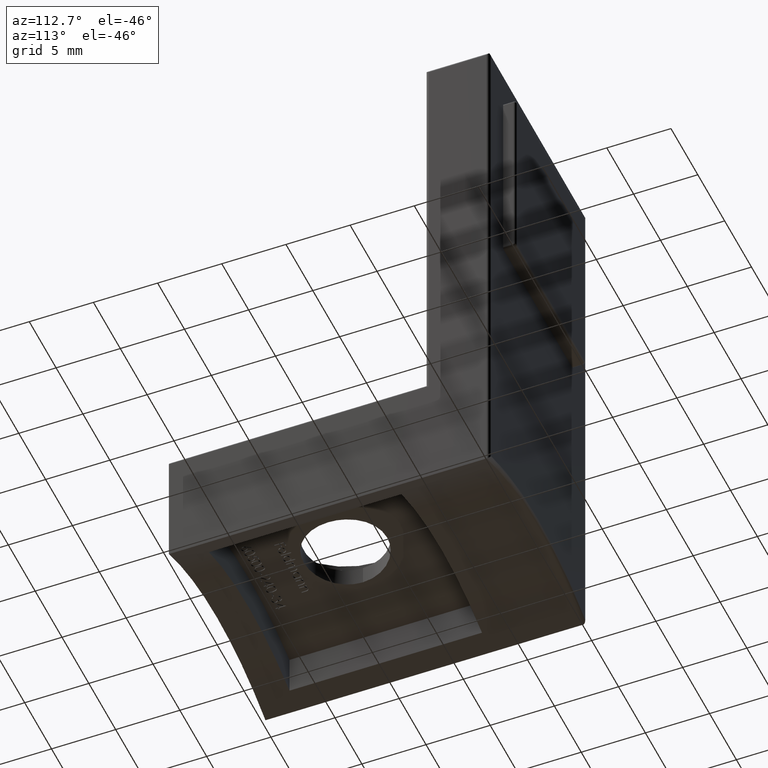
[diagram: clean part render]
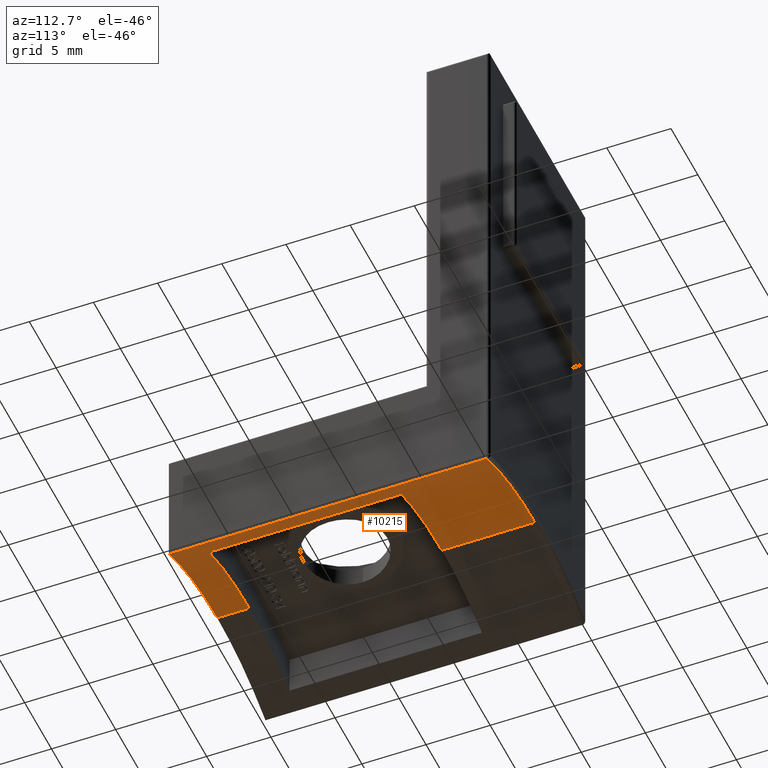
[diagram: same view with one face highlighted and labeled with its STEP entity id]
A machine part, auxiliary view. The second image highlights one B-rep face of the part: STEP entity #10215.
In plain terms, the highlighted cylindrical surface (partial cylindrical patch) has radius 21.2 mm, axis along (-0, 1, -0).
Its self-contained STEP definition (entity closure, byte-faithful):
#129 = CARTESIAN_POINT ( 'NONE',  ( 0.0000000000000000000, -7.499999999999996400, -21.19999999999999900 ) ) ;
#149 = EDGE_CURVE ( 'NONE', #3386, #8612, #14125, .T. ) ;
#370 = DIRECTION ( 'NONE',  ( -0.0000000000000000000, 1.000000000000000000, -0.0000000000000000000 ) ) ;
#374 = EDGE_CURVE ( 'NONE', #681, #10764, #5834, .T. ) ;
#390 = LINE ( 'NONE', #8334, #10802 ) ;
#568 = DIRECTION ( 'NONE',  ( 0.0000000000000000000, 0.0000000000000000000, 1.000000000000000000 ) ) ;
#681 = VERTEX_POINT ( 'NONE', #3149 ) ;
#1197 = EDGE_LOOP ( 'NONE', ( #12771, #9539, #3953, #9008, #12128, #14207, #10861, #2387 ) ) ;
#1207 = EDGE_CURVE ( 'NONE', #681, #12019, #9747, .T. ) ;
#1694 = CARTESIAN_POINT ( 'NONE',  ( 7.500000000000003600, -25.00000000000000000, -1.370980861373903600 ) ) ;
#1699 = DIRECTION ( 'NONE',  ( -0.0000000000000000000, 1.000000000000000000, -0.0000000000000000000 ) ) ;
#1723 = VERTEX_POINT ( 'NONE', #12835 ) ;
#2149 = DIRECTION ( 'NONE',  ( -0.0000000000000000000, 1.000000000000000000, -0.0000000000000000000 ) ) ;
#2387 = ORIENTED_EDGE ( 'NONE', *, *, #11281, .F. ) ;
#2605 = CARTESIAN_POINT ( 'NONE',  ( 9.000000000000000000, -25.00000000000000000, -2.005209039950446700 ) ) ;
#2857 = CARTESIAN_POINT ( 'NONE',  ( 0.0000000000000000000, -0.2500000000000002200, 0.0000000000000000000 ) ) ;
#2981 = EDGE_CURVE ( 'NONE', #1723, #7633, #14585, .T. ) ;
#3087 = EDGE_CURVE ( 'NONE', #10764, #11946, #10906, .T. ) ;
#3149 = CARTESIAN_POINT ( 'NONE',  ( 0.0000000000000000000, -7.499999999999996400, 0.0000000000000000000 ) ) ;
#3386 = VERTEX_POINT ( 'NONE', #6712 ) ;
#3539 = FACE_OUTER_BOUND ( 'NONE', #1197, .T. ) ;
#3595 = AXIS2_PLACEMENT_3D ( 'NONE', #3971, #14296, #11895 ) ;
#3622 = DIRECTION ( 'NONE',  ( -0.0000000000000000000, 1.000000000000000000, -0.0000000000000000000 ) ) ;
#3953 = ORIENTED_EDGE ( 'NONE', *, *, #149, .T. ) ;
#3971 = CARTESIAN_POINT ( 'NONE',  ( 0.0000000000000000000, -25.00000000000000000, -21.19999999999999900 ) ) ;
#4012 = CARTESIAN_POINT ( 'NONE',  ( 7.500000000000003600, -22.50000000000000000, -1.370980861373903600 ) ) ;
#4088 = CARTESIAN_POINT ( 'NONE',  ( 9.000000000000000000, -25.00000000000000000, -2.005209039950446700 ) ) ;
#4516 = CARTESIAN_POINT ( 'NONE',  ( 7.500000000000005300, -7.499999999999996400, -1.370980861373907000 ) ) ;
#4691 = LINE ( 'NONE', #1694, #11265 ) ;
#4918 = DIRECTION ( 'NONE',  ( 0.0000000000000000000, 0.0000000000000000000, -1.000000000000000000 ) ) ;
#5056 = AXIS2_PLACEMENT_3D ( 'NONE', #9408, #370, #4918 ) ;
#5834 = LINE ( 'NONE', #8904, #13275 ) ;
#6613 = AXIS2_PLACEMENT_3D ( 'NONE', #129, #3622, #9152 ) ;
#6712 = CARTESIAN_POINT ( 'NONE',  ( 0.0000000000000000000, -22.50000000000000000, 0.0000000000000000000 ) ) ;
#7282 = CYLINDRICAL_SURFACE ( 'NONE', #7431, 21.19999999999999900 ) ;
#7431 = AXIS2_PLACEMENT_3D ( 'NONE', #10358, #14148, #568 ) ;
#7633 = VERTEX_POINT ( 'NONE', #2605 ) ;
#8334 = CARTESIAN_POINT ( 'NONE',  ( 0.0000000000000000000, -25.00000000000000000, 0.0000000000000000000 ) ) ;
#8411 = AXIS2_PLACEMENT_3D ( 'NONE', #12401, #9083, #13474 ) ;
#8612 = VERTEX_POINT ( 'NONE', #4012 ) ;
#8904 = CARTESIAN_POINT ( 'NONE',  ( 0.0000000000000000000, -25.00000000000000000, 0.0000000000000000000 ) ) ;
#9008 = ORIENTED_EDGE ( 'NONE', *, *, #9207, .T. ) ;
#9083 = DIRECTION ( 'NONE',  ( -0.0000000000000000000, 1.000000000000000000, -0.0000000000000000000 ) ) ;
#9152 = DIRECTION ( 'NONE',  ( 0.0000000000000000000, 0.0000000000000000000, -1.000000000000000000 ) ) ;
#9207 = EDGE_CURVE ( 'NONE', #8612, #12019, #4691, .T. ) ;
#9408 = CARTESIAN_POINT ( 'NONE',  ( 0.0000000000000000000, -22.50000000000000000, -21.19999999999999900 ) ) ;
#9539 = ORIENTED_EDGE ( 'NONE', *, *, #10765, .T. ) ;
#9747 = CIRCLE ( 'NONE', #6613, 21.19999999999999900 ) ;
#9940 = VECTOR ( 'NONE', #1699, 1000.000000000000000 ) ;
#10215 = ADVANCED_FACE ( 'NONE', ( #3539 ), #7282, .F. ) ;
#10358 = CARTESIAN_POINT ( 'NONE',  ( 0.0000000000000000000, -25.00000000000000000, -21.19999999999999900 ) ) ;
#10630 = LINE ( 'NONE', #4088, #9940 ) ;
#10710 = DIRECTION ( 'NONE',  ( -0.0000000000000000000, 1.000000000000000000, -0.0000000000000000000 ) ) ;
#10764 = VERTEX_POINT ( 'NONE', #2857 ) ;
#10765 = EDGE_CURVE ( 'NONE', #1723, #3386, #390, .T. ) ;
#10802 = VECTOR ( 'NONE', #10710, 1000.000000000000000 ) ;
#10861 = ORIENTED_EDGE ( 'NONE', *, *, #3087, .T. ) ;
#10906 = CIRCLE ( 'NONE', #8411, 21.19999999999999900 ) ;
#11265 = VECTOR ( 'NONE', #12969, 1000.000000000000000 ) ;
#11281 = EDGE_CURVE ( 'NONE', #7633, #11946, #10630, .T. ) ;
#11895 = DIRECTION ( 'NONE',  ( 0.0000000000000000000, 0.0000000000000000000, 1.000000000000000000 ) ) ;
#11946 = VERTEX_POINT ( 'NONE', #14212 ) ;
#12019 = VERTEX_POINT ( 'NONE', #4516 ) ;
#12128 = ORIENTED_EDGE ( 'NONE', *, *, #1207, .F. ) ;
#12401 = CARTESIAN_POINT ( 'NONE',  ( 0.0000000000000000000, -0.2500000000000002200, -21.19999999999999900 ) ) ;
#12771 = ORIENTED_EDGE ( 'NONE', *, *, #2981, .F. ) ;
#12835 = CARTESIAN_POINT ( 'NONE',  ( 0.0000000000000000000, -25.00000000000000000, 0.0000000000000000000 ) ) ;
#12969 = DIRECTION ( 'NONE',  ( -0.0000000000000000000, 1.000000000000000000, -0.0000000000000000000 ) ) ;
#13275 = VECTOR ( 'NONE', #2149, 1000.000000000000000 ) ;
#13474 = DIRECTION ( 'NONE',  ( 0.0000000000000000000, 0.0000000000000000000, -1.000000000000000000 ) ) ;
#14125 = CIRCLE ( 'NONE', #5056, 21.19999999999999900 ) ;
#14148 = DIRECTION ( 'NONE',  ( -0.0000000000000000000, 1.000000000000000000, -0.0000000000000000000 ) ) ;
#14207 = ORIENTED_EDGE ( 'NONE', *, *, #374, .T. ) ;
#14212 = CARTESIAN_POINT ( 'NONE',  ( 9.000000000000000000, -0.2500000000000002200, -2.005209039950446700 ) ) ;
#14296 = DIRECTION ( 'NONE',  ( 0.0000000000000000000, 1.000000000000000000, 0.0000000000000000000 ) ) ;
#14585 = CIRCLE ( 'NONE', #3595, 21.19999999999999900 ) ;